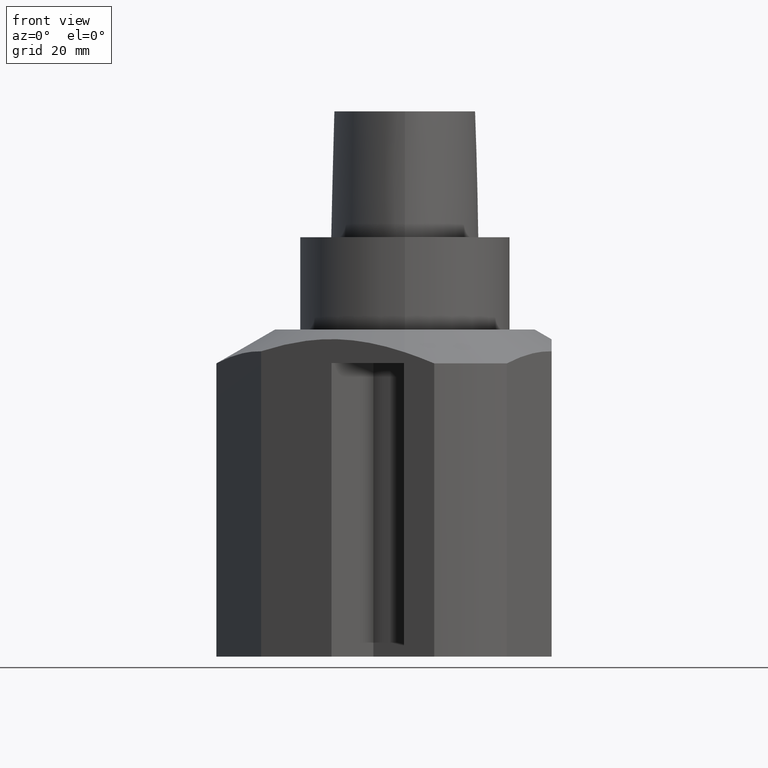
[diagram: clean part render]
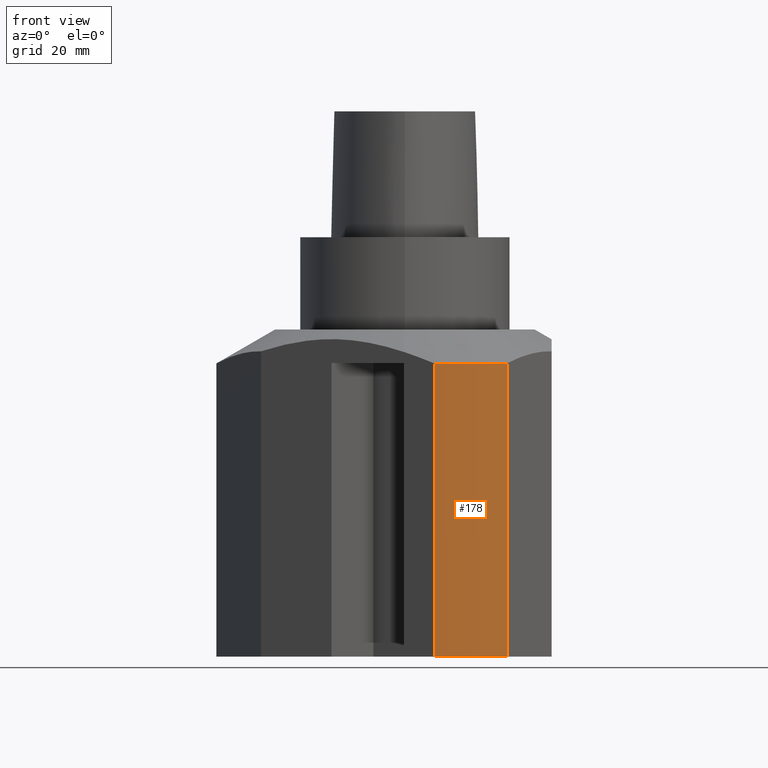
[diagram: same view with one face highlighted and labeled with its STEP entity id]
A machine part, front view. The second image highlights one B-rep face of the part: STEP entity #178.
In plain terms, the highlighted cylindrical surface (partial cylindrical patch) has radius 45 mm, axis along (0, -0, -1).
Its self-contained STEP definition (entity closure, byte-faithful):
#122=EDGE_CURVE('240[2]',#363,#364,#365,.T.);
#137=EDGE_CURVE('240[2]',#390,#391,#392,.T.);
#178=ADVANCED_FACE('240[2]',(#452),#453,.T.);
#304=EDGE_CURVE('240[2]',#364,#391,#617,.T.);
#335=EDGE_CURVE('240[2]',#390,#363,#653,.T.);
#363=VERTEX_POINT('',#674);
#364=VERTEX_POINT('',#675);
#365=LINE('',#676,#677);
#390=VERTEX_POINT('',#729);
#391=VERTEX_POINT('',#730);
#392=LINE('',#731,#732);
#452=FACE_OUTER_BOUND('',#883,.T.);
#453=CYLINDRICAL_SURFACE('',#884,45.0);
#617=CIRCLE('',#1274,45.0);
#653=CIRCLE('',#1710,45.0);
#674=CARTESIAN_POINT('',(6.99489742783153,-44.4530247561863,-99.9999999999999));
#675=CARTESIAN_POINT('',(6.99489742783153,-44.4530247561863,-30.0829021630708));
#676=CARTESIAN_POINT('',(6.99489742783153,-44.4530247561863,-63.0414510815353));
#677=VECTOR('',#1730,1.0);
#729=CARTESIAN_POINT('',(24.3332520873291,-37.8535710713599,-99.9999999999999));
#730=CARTESIAN_POINT('',(24.3332520873291,-37.8535710713599,-30.0829021630708));
#731=CARTESIAN_POINT('',(24.3332520873291,-37.8535710713599,-63.0414510815353));
#732=VECTOR('',#1743,1.0);
#883=EDGE_LOOP('',(#1781,#1782,#1783,#1784));
#884=AXIS2_PLACEMENT_3D('',#1785,#1786,#1787);
#1274=AXIS2_PLACEMENT_3D('',#1983,#1984,#1985);
#1710=AXIS2_PLACEMENT_3D('',#2036,#2037,#2038);
#1730=DIRECTION('',(-0.0,-0.0,1.0));
#1743=DIRECTION('',(-0.0,-0.0,1.0));
#1781=ORIENTED_EDGE('',*,*,#122,.F.);
#1782=ORIENTED_EDGE('',*,*,#335,.F.);
#1783=ORIENTED_EDGE('',*,*,#137,.T.);
#1784=ORIENTED_EDGE('',*,*,#304,.F.);
#1785=CARTESIAN_POINT('',(3.86017556403034E-015,0.0,-63.0414510815353));
#1786=DIRECTION('',(0.0,-0.0,-1.0));
#1787=DIRECTION('',(0.0,-1.0,0.0));
#1983=CARTESIAN_POINT('',(1.84204649215337E-015,0.0,-30.0829021630707));
#1984=DIRECTION('',(0.0,0.0,1.0));
#1985=DIRECTION('',(0.0,-1.0,0.0));
#2036=CARTESIAN_POINT('',(3.86017556403034E-015,0.0,-99.9999999999999));
#2037=DIRECTION('',(0.0,-0.0,-1.0));
#2038=DIRECTION('',(0.0,-1.0,0.0));